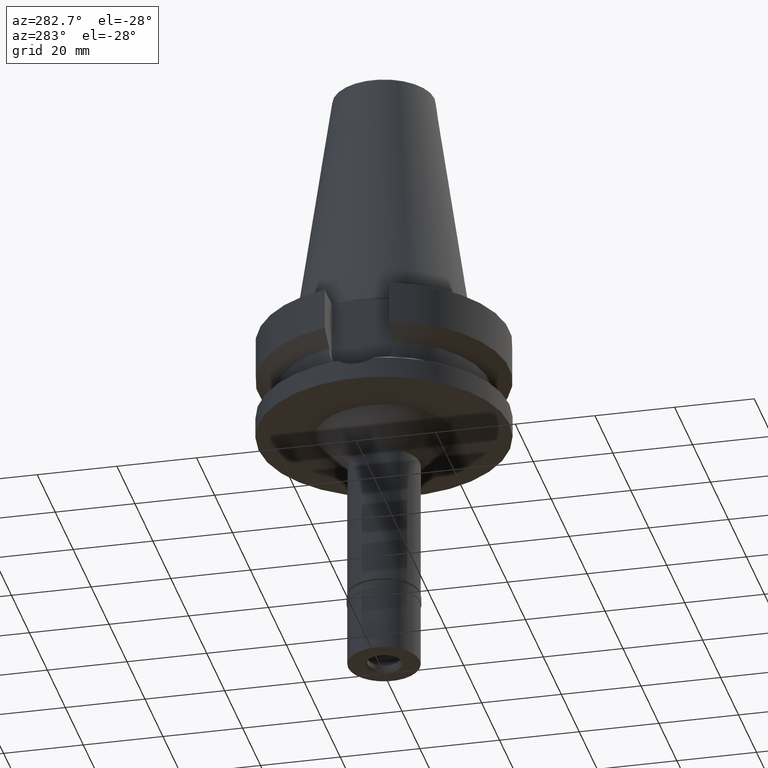
[diagram: clean part render]
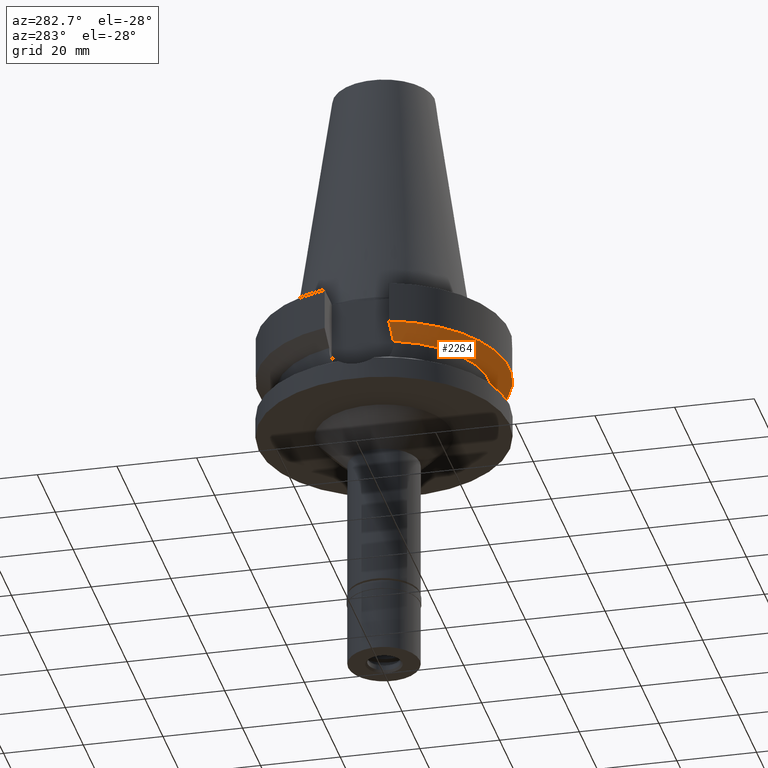
[diagram: same view with one face highlighted and labeled with its STEP entity id]
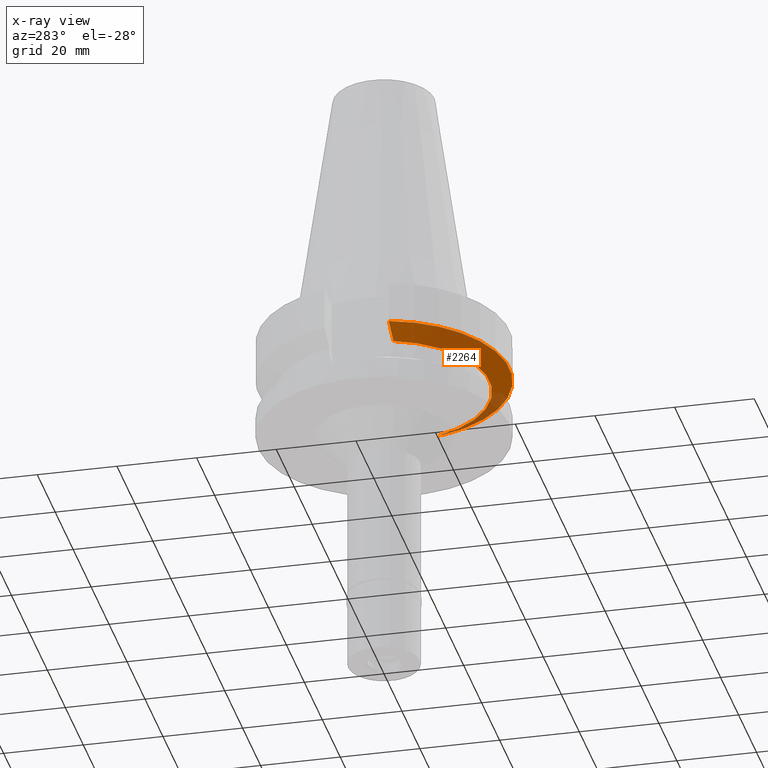
[diagram: x-ray of the same camera — body ghosted, the highlighted face saturated]
A machine part, auxiliary view. The second image highlights one B-rep face of the part: STEP entity #2264.
The next image is the same camera in x-ray: the body ghosted, the highlighted face saturated — about 12% of this face is hidden behind the body in this view.
In plain terms, the highlighted conical surface has half-angle 60 deg.
Its self-contained STEP definition (entity closure, byte-faithful):
#1 = CARTESIAN_POINT ( 'NONE',  ( 25.24772266958000344, -8.050000000000000711, -14.45225699861000024 ) ) ;
#85 = EDGE_CURVE ( 'NONE', #1228, #1825, #498, .T. ) ;
#134 = EDGE_LOOP ( 'NONE', ( #2711, #2809, #2482, #218 ) ) ;
#166 = EDGE_CURVE ( 'NONE', #1953, #1825, #2823, .T. ) ;
#218 = ORIENTED_EDGE ( 'NONE', *, *, #2118, .F. ) ;
#487 = CARTESIAN_POINT ( 'NONE',  ( 25.24772266958000344, -8.050000000000000711, -14.45225699861000024 ) ) ;
#498 = CIRCLE ( 'NONE', #1115, 26.50000000000000711 ) ;
#594 = DIRECTION ( 'NONE',  ( 0.0000000000000000000, 0.0000000000000000000, 1.000000000000000000 ) ) ;
#859 = CARTESIAN_POINT ( 'NONE',  ( 0.0000000000000000000, 1.065333950388000029E-14, -11.56550565266999975 ) ) ;
#874 = AXIS2_PLACEMENT_3D ( 'NONE', #859, #594, #2386 ) ;
#893 = CARTESIAN_POINT ( 'NONE',  ( 0.0000000000000000000, 1.065333950388000029E-14, -13.00888132564000088 ) ) ;
#927 = FACE_OUTER_BOUND ( 'NONE', #134, .T. ) ;
#939 = CARTESIAN_POINT ( 'NONE',  ( 28.57294943248965069, -8.050008286080277742, -12.61547994959696162 ) ) ;
#984 = DIRECTION ( 'NONE',  ( 0.9527442516822307583, -0.3037735849057093818, 0.0000000000000000000 ) ) ;
#1115 = AXIS2_PLACEMENT_3D ( 'NONE', #2064, #2107, #984 ) ;
#1172 = CARTESIAN_POINT ( 'NONE',  ( 26.83757721644322203, -8.050003171512095435, -13.57772970008642588 ) ) ;
#1228 = VERTEX_POINT ( 'NONE', #487 ) ;
#1267 = VERTEX_POINT ( 'NONE', #2024 ) ;
#1401 = CARTESIAN_POINT ( 'NONE',  ( -26.83754613053898197, -8.049990816513313163, -13.57774889813872932 ) ) ;
#1609 = CARTESIAN_POINT ( 'NONE',  ( -28.57292326217714518, -8.049998555344668461, -12.61549607132281814 ) ) ;
#1672 = CONICAL_SURFACE ( 'NONE', #2854, 29.00000000000000000, 1.047197551196400456 ) ;
#1825 = VERTEX_POINT ( 'NONE', #2427 ) ;
#1953 = VERTEX_POINT ( 'NONE', #2252 ) ;
#2024 = CARTESIAN_POINT ( 'NONE',  ( 30.45402272279000044, -8.049999999999000622, -11.56550565266999975 ) ) ;
#2057 = DIRECTION ( 'NONE',  ( 0.0000000000000000000, 0.0000000000000000000, 1.000000000000000000 ) ) ;
#2064 = CARTESIAN_POINT ( 'NONE',  ( 0.0000000000000000000, 1.065333950388000029E-14, -14.45225699861000024 ) ) ;
#2097 = CARTESIAN_POINT ( 'NONE',  ( -30.45402291385000026, -8.049999277199999526, -11.56551216277999927 ) ) ;
#2107 = DIRECTION ( 'NONE',  ( 0.0000000000000000000, 0.0000000000000000000, -1.000000000000000000 ) ) ;
#2118 = EDGE_CURVE ( 'NONE', #1953, #1267, #2129, .T. ) ;
#2129 = CIRCLE ( 'NONE', #874, 31.50000000000000000 ) ;
#2223 = EDGE_CURVE ( 'NONE', #1228, #1267, #2647, .T. ) ;
#2252 = CARTESIAN_POINT ( 'NONE',  ( -30.45402291385000026, -8.049999277199999526, -11.56551216277999927 ) ) ;
#2264 = ADVANCED_FACE ( 'NONE', ( #927 ), #1672, .T. ) ;
#2386 = DIRECTION ( 'NONE',  ( 0.0000000000000000000, -1.000000000000000000, 0.0000000000000000000 ) ) ;
#2427 = CARTESIAN_POINT ( 'NONE',  ( -25.24772413199000098, -8.049995413335999217, -14.45229204671000112 ) ) ;
#2433 = DIRECTION ( 'NONE',  ( 0.0000000000000000000, 1.000000000000000000, 0.0000000000000000000 ) ) ;
#2482 = ORIENTED_EDGE ( 'NONE', *, *, #2223, .T. ) ;
#2647 = B_SPLINE_CURVE_WITH_KNOTS ( 'NONE', 3,
 ( #1, #1172, #939, #2688 ),
 .UNSPECIFIED., .F., .F.,
 ( 4, 4 ),
 ( 0.0000000000000000000, 1.000000000000000000 ),
 .UNSPECIFIED. ) ;
#2688 = CARTESIAN_POINT ( 'NONE',  ( 30.45402272279000044, -8.049999999999000622, -11.56550565266999975 ) ) ;
#2711 = ORIENTED_EDGE ( 'NONE', *, *, #166, .T. ) ;
#2783 = CARTESIAN_POINT ( 'NONE',  ( -25.24772413199000098, -8.049995413335999217, -14.45229204671000112 ) ) ;
#2809 = ORIENTED_EDGE ( 'NONE', *, *, #85, .F. ) ;
#2823 = B_SPLINE_CURVE_WITH_KNOTS ( 'NONE', 3,
 ( #2097, #1609, #1401, #2783 ),
 .UNSPECIFIED., .F., .F.,
 ( 4, 4 ),
 ( 0.0000000000000000000, 1.000000000000000000 ),
 .UNSPECIFIED. ) ;
#2854 = AXIS2_PLACEMENT_3D ( 'NONE', #893, #2057, #2433 ) ;